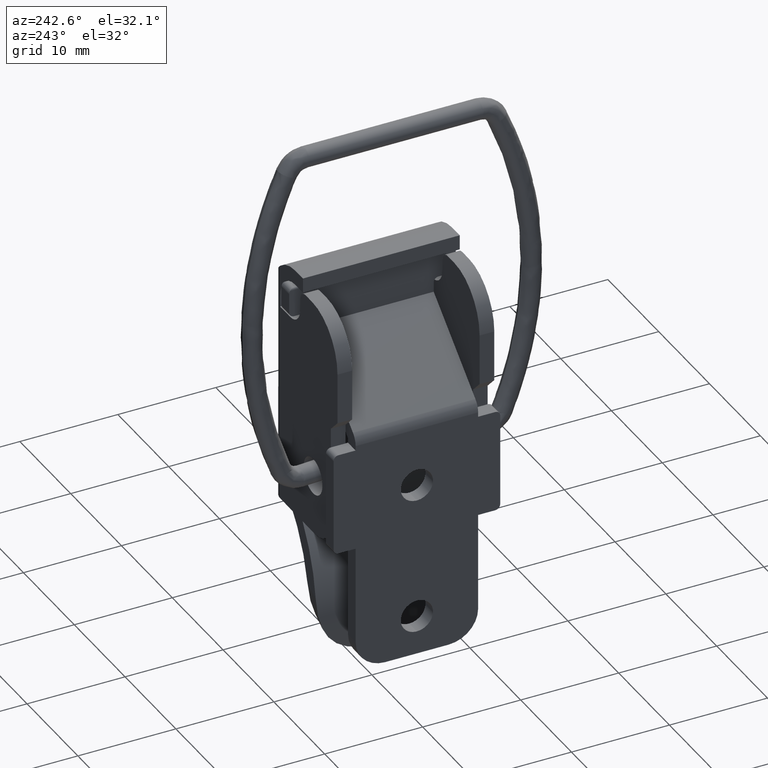
[diagram: clean part render]
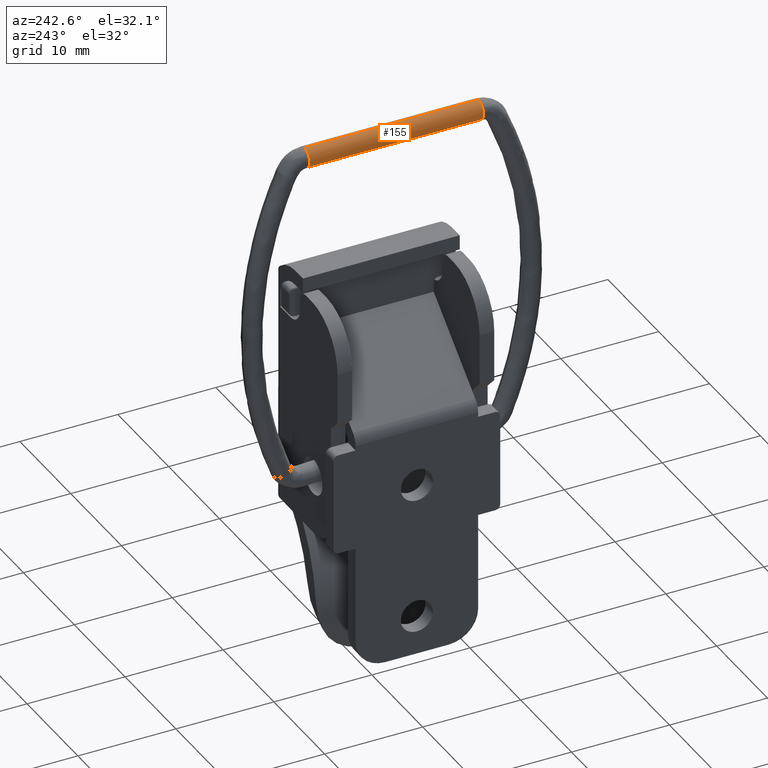
[diagram: same view with one face highlighted and labeled with its STEP entity id]
A machine part, auxiliary view. The second image highlights one B-rep face of the part: STEP entity #155.
In plain terms, the highlighted cylindrical surface (edge-blend (fillet) strip) has radius 1 mm, axis along (0, 1, 0).
Its self-contained STEP definition (entity closure, byte-faithful):
#155=ADVANCED_FACE('',(#320),#319,.T.);
#319=CYLINDRICAL_SURFACE('',#1442,1.00000000000E+00);
#320=FACE_OUTER_BOUND('',#1443,.T.);
#1439=CARTESIAN_POINT('',(8.86723816095E+00,1.00000000000E+00,1.76583051149E+01));
#1440=DIRECTION('',(1.00000000000E+00,-0.00000000000E+00,-0.00000000000E+00));
#1441=DIRECTION('',(-0.00000000000E+00,-0.00000000000E+00,-1.00000000000E+00));
#1442=AXIS2_PLACEMENT_3D('',#1439,#1440,#1441);
#1443=EDGE_LOOP('',(#2121,#2122,#2123,#2124));
#2121=ORIENTED_EDGE('',*,*,#2701,.F.);
#2122=ORIENTED_EDGE('',*,*,#2702,.F.);
#2123=ORIENTED_EDGE('',*,*,#2703,.T.);
#2124=ORIENTED_EDGE('',*,*,#2704,.T.);
#2701=EDGE_CURVE('',#3076,#3077,#3078,.T.);
#2702=EDGE_CURVE('',#3084,#3076,#3085,.T.);
#2703=EDGE_CURVE('',#3084,#3091,#3092,.T.);
#2704=EDGE_CURVE('',#3091,#3077,#3098,.T.);
#3076=VERTEX_POINT('',#5007);
#3077=VERTEX_POINT('',#5008);
#3078=CIRCLE('',#5012,1.00000000000E+00);
#3084=VERTEX_POINT('',#5013);
#3085=(BOUNDED_CURVE() B_SPLINE_CURVE(1,(#5014,#5015),.UNSPECIFIED.,.F.,.F.) B_SPLINE_CURVE_WITH_KNOTS((2,2),(8.33333328360E-02,9.16666665505E-01),.UNSPECIFIED.) CURVE() GEOMETRIC_REPRESENTATION_ITEM() RATIONAL_B_SPLINE_CURVE((1.00000000000E+00,1.00000000000E+00)) REPRESENTATION_ITEM('') );
#3091=VERTEX_POINT('',#5016);
#3092=CIRCLE('',#5020,1.00000000000E+00);
#3098=(BOUNDED_CURVE() B_SPLINE_CURVE(1,(#5021,#5022),.UNSPECIFIED.,.F.,.F.) B_SPLINE_CURVE_WITH_KNOTS((2,2),(8.33333333333E-02,9.16666666667E-01),.UNSPECIFIED.) CURVE() GEOMETRIC_REPRESENTATION_ITEM() RATIONAL_B_SPLINE_CURVE((7.50000000000E-01,7.50000000000E-01)) REPRESENTATION_ITEM('') );
#5007=CARTESIAN_POINT('',(8.86723816095E+00,1.00000000000E+00,1.66583051149E+01));
#5008=CARTESIAN_POINT('',(8.86723816095E+00,1.00000000000E+00,1.86583051149E+01));
#5009=CARTESIAN_POINT('',(8.86723816095E+00,1.00000000000E+00,1.76583051149E+01));
#5010=DIRECTION('',(1.00000000000E+00,0.00000000000E+00,0.00000000000E+00));
#5011=DIRECTION('',(0.00000000000E+00,-1.22460635382E-16,-1.00000000000E+00));
#5012=AXIS2_PLACEMENT_3D('',#5009,#5010,#5011);
#5013=CARTESIAN_POINT('',(-8.86723816095E+00,1.00000000000E+00,1.66583051149E+01));
#5014=CARTESIAN_POINT('',(-8.86723817154E+00,1.00000000000E+00,1.66583051149E+01));
#5015=CARTESIAN_POINT('',(8.86723813622E+00,1.00000000000E+00,1.66583051149E+01));
#5016=CARTESIAN_POINT('',(-8.86723816095E+00,1.00000000000E+00,1.86583051149E+01));
#5017=CARTESIAN_POINT('',(-8.86723816095E+00,1.00000000000E+00,1.76583051149E+01));
#5018=DIRECTION('',(1.00000000000E+00,0.00000000000E+00,0.00000000000E+00));
#5019=DIRECTION('',(0.00000000000E+00,-1.22460635382E-16,-1.00000000000E+00));
#5020=AXIS2_PLACEMENT_3D('',#5017,#5018,#5019);
#5021=CARTESIAN_POINT('',(-8.86723816095E+00,1.00000000000E+00,1.86583051149E+01));
#5022=CARTESIAN_POINT('',(8.86723816095E+00,1.00000000000E+00,1.86583051149E+01));